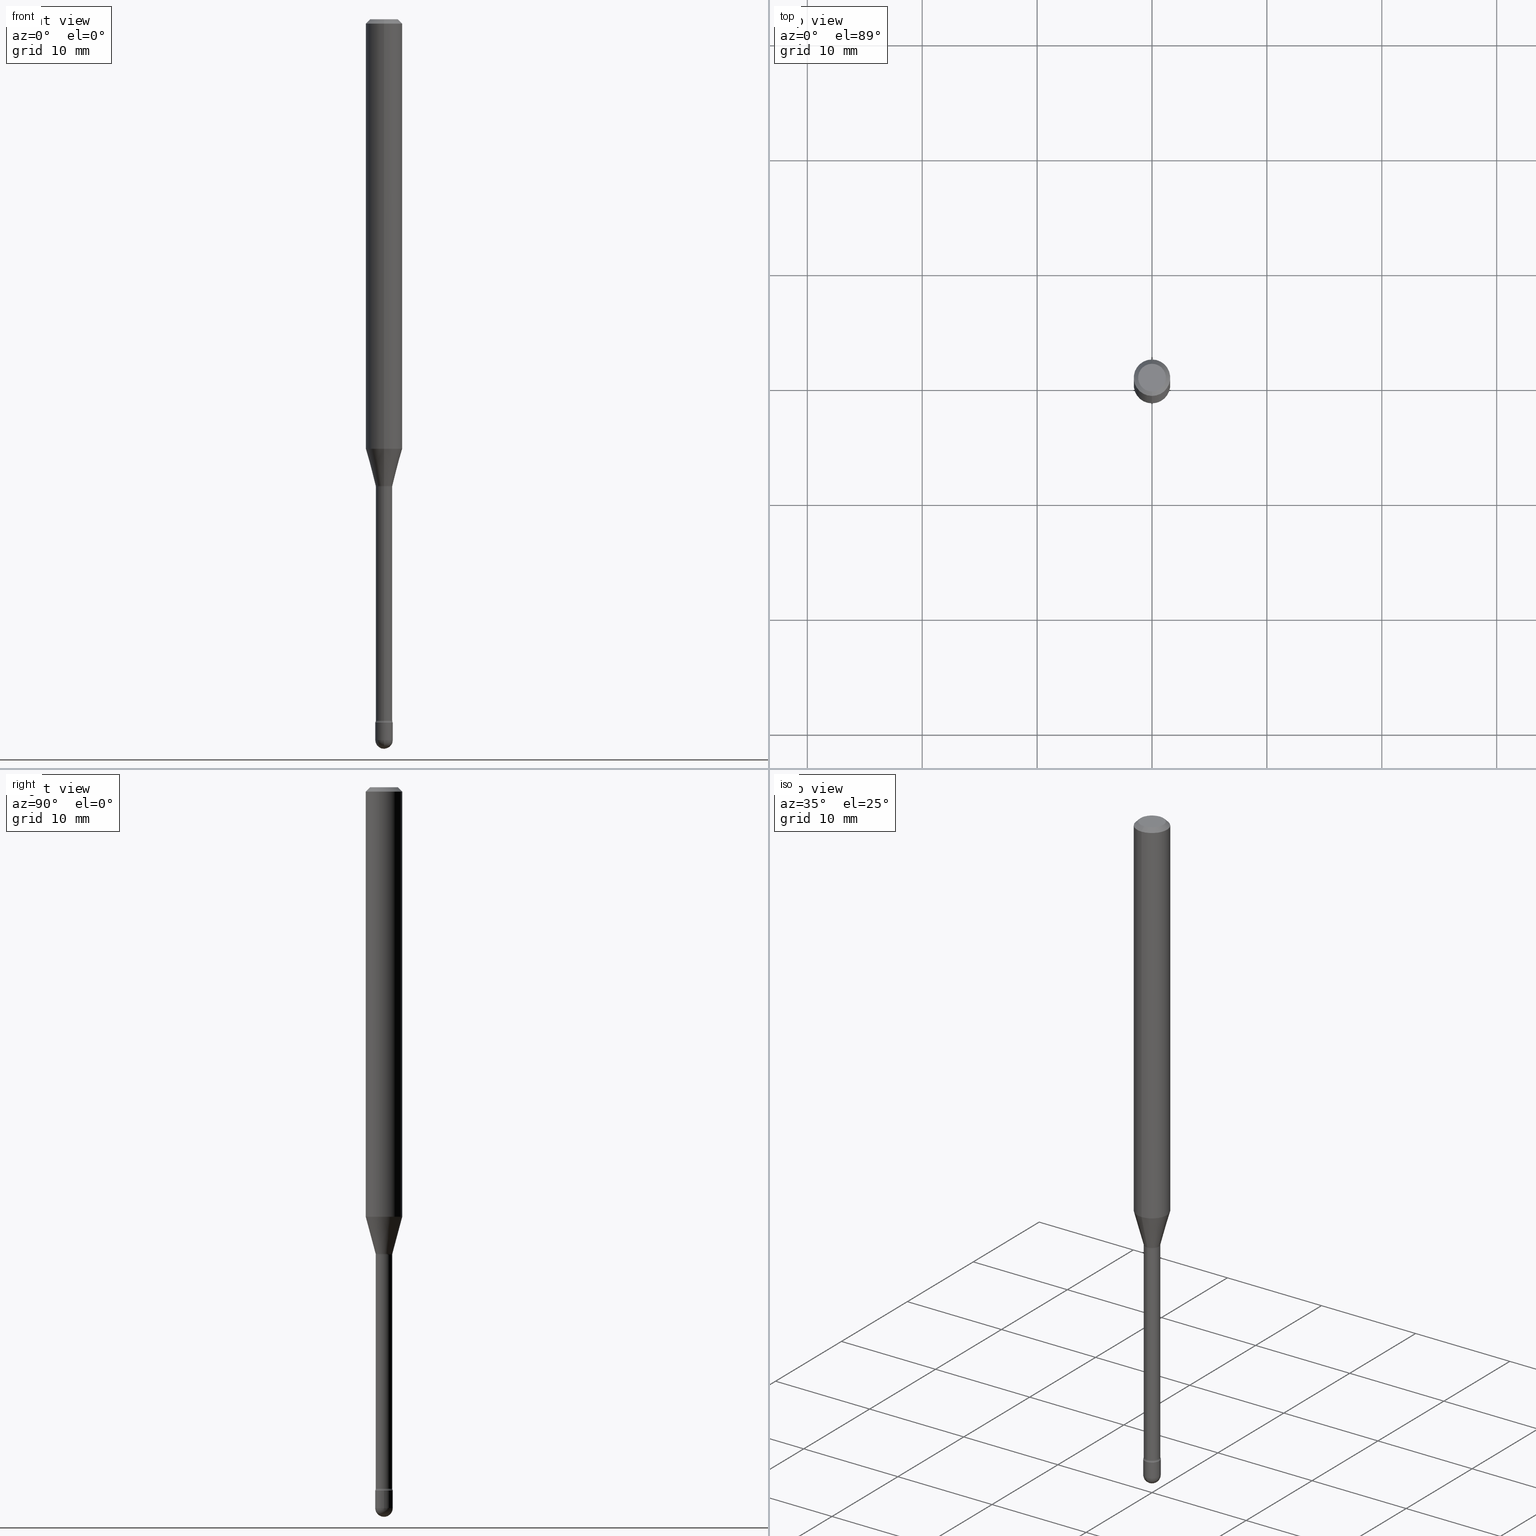
[diagram: canonical four-view strip — front | top / right | iso, engineering-drawing reading convention]
A machine part, canonical four-view strip (front | top / right | iso — engineering-drawing reading convention). The complete STEP part file that produces these views, byte-faithful:
ISO-10303-21;
HEADER;
FILE_DESCRIPTION (( 'STEP AP203' ),
    '1' );
FILE_NAME ('03925.STEP',
    '2024-04-09T21:12:41',
    ( '' ),
    ( '' ),
    'SwSTEP 2.0',
    'SolidWorks 2023',
    '' );
FILE_SCHEMA (( 'CONFIG_CONTROL_DESIGN' ));
ENDSEC;

DATA;
#1 = ORIENTED_EDGE ( 'NONE', *, *, #230, .F. ) ;
#2 = DIRECTION ( 'NONE',  ( -6.982962677686265922E-15, -1.000000000000000000, 3.491424740603152967E-15 ) ) ;
#3 = CALENDAR_DATE ( 2024, 9, 4 ) ;
#4 = AXIS2_PLACEMENT_3D ( 'NONE', #307, #119, #34 ) ;
#5 = APPROVAL_PERSON_ORGANIZATION ( #11, #550, #84 ) ;
#6 = EDGE_LOOP ( 'NONE', ( #57, #165, #459, #301 ) ) ;
#7 = SHAPE_DEFINITION_REPRESENTATION ( #290, #172 ) ;
#8 = DIRECTION ( 'NONE',  ( 0.000000000000000000, 0.000000000000000000, 1.000000000000000000 ) ) ;
#9 = EDGE_LOOP ( 'NONE', ( #103, #410, #372, #249 ) ) ;
#10 = PERSON_AND_ORGANIZATION_ROLE ( 'creator' ) ;
#11 = PERSON_AND_ORGANIZATION ( #502, #255 ) ;
#12 = CIRCLE ( 'NONE', #141, 0.01499999999999997689 ) ;
#13 = CARTESIAN_POINT ( 'NONE',  ( 3.917642684829632666E-29, -5.593174406773630015E-15, -1.601974787463811278 ) ) ;
#14 = CARTESIAN_POINT ( 'NONE',  ( -4.287811248607203282E-16, -0.06250000000000005551, -0.01499999999999986587 ) ) ;
#15 = CYLINDRICAL_SURFACE ( 'NONE', #389, 0.03000000000000000583 ) ;
#16 = ADVANCED_FACE ( 'NONE', ( #152 ), #291, .T. ) ;
#17 = DIRECTION ( 'NONE',  ( -1.000000000000000000, 6.982962677686265922E-15, -4.883557194083112901E-29 ) ) ;
#18 = DIRECTION ( 'NONE',  ( -6.982962677686266711E-15, -1.000000000000000000, 0.000000000000000000 ) ) ;
#19 = VERTEX_POINT ( 'NONE', #330 ) ;
#20 = CIRCLE ( 'NONE', #139, 0.02999999999999999889 ) ;
#21 = AXIS2_PLACEMENT_3D ( 'NONE', #162, #31, #260 ) ;
#22 = CARTESIAN_POINT ( 'NONE',  ( -0.03000000000000000583, 2.131628207280300972E-16, -1.475680527076471882E-30 ) ) ;
#23 = FACE_OUTER_BOUND ( 'NONE', #453, .T. ) ;
#24 = EDGE_LOOP ( 'NONE', ( #350, #529, #219, #214 ) ) ;
#25 = CARTESIAN_POINT ( 'NONE',  ( 3.069544618484023452E-16, 0.04319999999999440260, -1.601974787463811500 ) ) ;
#26 = DIRECTION ( 'NONE',  ( -2.445508328524885386E-29, 3.491424740603154151E-15, 1.000000000000000000 ) ) ;
#27 = VERTEX_POINT ( 'NONE', #286 ) ;
#28 = AXIS2_PLACEMENT_3D ( 'NONE', #196, #365, #537 ) ;
#29 = EDGE_CURVE ( 'NONE', #43, #257, #481, .T. ) ;
#30 = CC_DESIGN_APPROVAL ( #341, ( #446 ) ) ;
#31 = DIRECTION ( 'NONE',  ( -1.000000000000000000, 7.105427357601001070E-15, -4.926315508542082329E-29 ) ) ;
#32 = DIRECTION ( 'NONE',  ( 6.982962677686265922E-15, 1.000000000000000000, -3.491424740603154151E-15 ) ) ;
#33 = ORIENTED_EDGE ( 'NONE', *, *, #360, .T. ) ;
#34 = DIRECTION ( 'NONE',  ( -6.982962677686265922E-15, -1.000000000000000000, 4.370956789862821150E-15 ) ) ;
#35 = CC_DESIGN_PERSON_AND_ORGANIZATION_ASSIGNMENT ( #431, #38, ( #117 ) ) ;
#36 = ORIENTED_EDGE ( 'NONE', *, *, #29, .T. ) ;
#37 = DIRECTION ( 'NONE',  ( 1.000000000000000000, -6.982962677686266711E-15, 4.876176775795935793E-29 ) ) ;
#38 = PERSON_AND_ORGANIZATION_ROLE ( 'classification_officer' ) ;
#39 = AXIS2_PLACEMENT_3D ( 'NONE', #153, #387, #250 ) ;
#40 = ORIENTED_EDGE ( 'NONE', *, *, #230, .T. ) ;
#41 = CARTESIAN_POINT ( 'NONE',  ( 3.668262492787347837E-31, -5.237137110904760365E-17, -0.01500000000000008271 ) ) ;
#42 = EDGE_CURVE ( 'NONE', #68, #471, #197, .T. ) ;
#43 = VERTEX_POINT ( 'NONE', #452 ) ;
#44 = DIRECTION ( 'NONE',  ( -2.445468806185136597E-29, 3.491481338843145583E-15, 1.000000000000000000 ) ) ;
#45 = EDGE_LOOP ( 'NONE', ( #157, #400, #97, #166 ) ) ;
#46 = APPROVAL_STATUS ( 'not_yet_approved' ) ;
#47 = CIRCLE ( 'NONE', #21, 0.02999999999999997807 ) ;
#48 = PERSON_AND_ORGANIZATION ( #502, #255 ) ;
#49 = APPROVAL_STATUS ( 'not_yet_approved' ) ;
#50 = EDGE_CURVE ( 'NONE', #151, #27, #468, .T. ) ;
#51 = EDGE_CURVE ( 'NONE', #555, #548, #511, .T. ) ;
#52 = CIRCLE ( 'NONE', #532, 0.02820000000000000284 ) ;
#53 = EDGE_LOOP ( 'NONE', ( #238, #184 ) ) ;
#54 = DIRECTION ( 'NONE',  ( -2.445508328524885105E-29, 3.491424740603154151E-15, 1.000000000000000000 ) ) ;
#55 = DIRECTION ( 'NONE',  ( -2.445508328524885386E-29, 3.491424740603154151E-15, 1.000000000000000000 ) ) ;
#56 = CARTESIAN_POINT ( 'NONE',  ( -4.364351673553558748E-16, -0.06250000000000517641, -1.471990657300387584 ) ) ;
#57 = ORIENTED_EDGE ( 'NONE', *, *, #287, .F. ) ;
#58 = EDGE_CURVE ( 'NONE', #259, #203, #159, .T. ) ;
#59 = TOROIDAL_SURFACE ( 'NONE', #268, 0.04319999999999998841, 0.01500000000000001506 ) ;
#60 = DIRECTION ( 'NONE',  ( -2.445508328524885105E-29, 3.491424740603154151E-15, 1.000000000000000000 ) ) ;
#61 = EDGE_CURVE ( 'NONE', #565, #270, #375, .T. ) ;
#62 = CARTESIAN_POINT ( 'NONE',  ( 3.668262492787347837E-31, -5.237137110904760365E-17, -0.01500000000000008271 ) ) ;
#63 = CARTESIAN_POINT ( 'NONE',  ( 6.114954764896610855E-29, -8.726866376909143979E-15, -2.500000000000000000 ) ) ;
#64 = CARTESIAN_POINT ( 'NONE',  ( 6.040307951277287977E-29, -8.623958906942569995E-15, -2.470000000000000195 ) ) ;
#65 = EDGE_LOOP ( 'NONE', ( #300, #540, #441, #515 ) ) ;
#66 = CIRCLE ( 'NONE', #187, 0.03000000000000000583 ) ;
#67 = CIRCLE ( 'NONE', #149, 0.01499999999999997689 ) ;
#68 = VERTEX_POINT ( 'NONE', #161 ) ;
#69 = CC_DESIGN_PERSON_AND_ORGANIZATION_ASSIGNMENT ( #490, #280, ( #446 ) ) ;
#70 = DIRECTION ( 'NONE',  ( 1.000000000000000000, -6.982962677686268288E-15, 0.000000000000000000 ) ) ;
#71 = DIRECTION ( 'NONE',  ( 1.000000000000000000, -7.105427357601001070E-15, 4.926314815413547839E-29 ) ) ;
#72 = DIRECTION ( 'NONE',  ( -2.445468806185136597E-29, 3.491481338843145583E-15, 1.000000000000000000 ) ) ;
#73 = DIRECTION ( 'NONE',  ( -2.445468806185136877E-29, 3.491481338843145188E-15, 1.000000000000000000 ) ) ;
#74 = FACE_OUTER_BOUND ( 'NONE', #79, .T. ) ;
#75 = ORIENTED_EDGE ( 'NONE', *, *, #179, .T. ) ;
#76 = EDGE_CURVE ( 'NONE', #451, #151, #335, .T. ) ;
#77 = CARTESIAN_POINT ( 'NONE',  ( 5.876251790263210729E-29, -8.389458601808959728E-15, -2.402875394747777449 ) ) ;
#78 = CC_DESIGN_PERSON_AND_ORGANIZATION_ASSIGNMENT ( #227, #10, ( #446 ) ) ;
#79 = EDGE_LOOP ( 'NONE', ( #261, #234 ) ) ;
#80 = CC_DESIGN_SECURITY_CLASSIFICATION ( #117, ( #446 ) ) ;
#81 = DIRECTION ( 'NONE',  ( 1.000000000000000000, -6.982962677686299054E-15, 0.000000000000000000 ) ) ;
#82 = PERSON_AND_ORGANIZATION_ROLE ( 'design_owner' ) ;
#83 = ORIENTED_EDGE ( 'NONE', *, *, #229, .T. ) ;
#84 = APPROVAL_ROLE ( '' ) ;
#85 = COORDINATED_UNIVERSAL_TIME_OFFSET ( 5, 0, .BEHIND. ) ;
#86 = AXIS2_PLACEMENT_3D ( 'NONE', #516, #394, #345 ) ;
#87 = CIRCLE ( 'NONE', #414, 0.02871111260566398468 ) ;
#88 = APPROVAL_PERSON_ORGANIZATION ( #48, #341, #89 ) ;
#89 = APPROVAL_ROLE ( '' ) ;
#90 = FACE_OUTER_BOUND ( 'NONE', #175, .T. ) ;
#91 = CARTESIAN_POINT ( 'NONE',  ( -2.131628207279695521E-16, -0.03000000000000861353, -2.470000000000000195 ) ) ;
#92 = CARTESIAN_POINT ( 'NONE',  ( 4.364351673553919652E-16, 0.06249999999999995143, -0.01500000000000030129 ) ) ;
#93 = DIRECTION ( 'NONE',  ( -1.807323732225328562E-15, -0.2588190451025179639, 0.9659258262890690894 ) ) ;
#94 = LOCAL_TIME ( 17, 12, 41.00000000000000000, #142 ) ;
#95 = CARTESIAN_POINT ( 'NONE',  ( 3.668262492787347837E-31, -5.237137110904760365E-17, -0.01500000000000008271 ) ) ;
#96 = ORIENTED_EDGE ( 'NONE', *, *, #308, .F. ) ;
#97 = ORIENTED_EDGE ( 'NONE', *, *, #273, .T. ) ;
#98 = CARTESIAN_POINT ( 'NONE',  ( 5.893579822906179826E-29, -8.414470026611981678E-15, -2.410000000000000142 ) ) ;
#99 = DIRECTION ( 'NONE',  ( -6.982962677686265922E-15, -1.000000000000000000, 3.483106191921935554E-15 ) ) ;
#100 = EDGE_CURVE ( 'NONE', #451, #548, #224, .T. ) ;
#101 = CARTESIAN_POINT ( 'NONE',  ( 4.440892098500625669E-16, 0.06250000000000000000, 2.598593526035489042E-16 ) ) ;
#102 = DIRECTION ( 'NONE',  ( -2.445508328524885105E-29, 3.491424740603154151E-15, 1.000000000000000000 ) ) ;
#103 = ORIENTED_EDGE ( 'NONE', *, *, #229, .F. ) ;
#104 = CARTESIAN_POINT ( 'NONE',  ( 6.040307951277287977E-29, -8.623958906942569995E-15, -2.470000000000000195 ) ) ;
#105 = CIRCLE ( 'NONE', #28, 0.02820000000000011386 ) ;
#106 = AXIS2_PLACEMENT_3D ( 'NONE', #104, #460, #519 ) ;
#107 = DIRECTION ( 'NONE',  ( -6.982962677686265922E-15, -1.000000000000000000, 3.491424740603154151E-15 ) ) ;
#108 = EDGE_CURVE ( 'NONE', #19, #451, #294, .T. ) ;
#109 = UNCERTAINTY_MEASURE_WITH_UNIT (LENGTH_MEASURE( 1.000000000000000082E-05 ), #110, 'distance_accuracy_value', 'NONE');
#110 =( CONVERSION_BASED_UNIT ( 'INCH', #120 ) LENGTH_UNIT ( ) NAMED_UNIT ( #547 ) );
#111 = CARTESIAN_POINT ( 'NONE',  ( 3.908148522873946629E-29, -5.579619698512475548E-15, -1.598092501787273134 ) ) ;
#112 = EDGE_CURVE ( 'NONE', #555, #264, #105, .T. ) ;
#113 = CARTESIAN_POINT ( 'NONE',  ( 0.02999999999999999889, -8.623958906942569995E-15, -2.410000000000000142 ) ) ;
#114 = EDGE_LOOP ( 'NONE', ( #465, #274, #386, #395 ) ) ;
#115 = DIRECTION ( 'NONE',  ( 1.839019923739598738E-15, 0.2588190451025247363, 0.9659258262890673130 ) ) ;
#116 = AXIS2_PLACEMENT_3D ( 'NONE', #475, #72, #81 ) ;
#117 = SECURITY_CLASSIFICATION ( '', '', #232 ) ;
#118 = CARTESIAN_POINT ( 'NONE',  ( -1.169113584055446105E-44, 1.669184350826100908E-30, 4.780733988912460139E-16 ) ) ;
#119 = DIRECTION ( 'NONE',  ( -2.445508328524885105E-29, 3.491424740603154151E-15, 1.000000000000000000 ) ) ;
#120 = LENGTH_MEASURE_WITH_UNIT ( LENGTH_MEASURE( 0.02539999999999999897 ), #476 );
#121 = DIRECTION ( 'NONE',  ( -6.982962677686265133E-15, -1.000000000000000000, 0.000000000000000000 ) ) ;
#122 = ORIENTED_EDGE ( 'NONE', *, *, #392, .F. ) ;
#123 = CARTESIAN_POINT ( 'NONE',  ( 6.040307951277287977E-29, -8.623958906942569995E-15, -2.470000000000000195 ) ) ;
#124 = CC_DESIGN_PERSON_AND_ORGANIZATION_ASSIGNMENT ( #277, #180, ( #487 ) ) ;
#125 = FACE_OUTER_BOUND ( 'NONE', #65, .T. ) ;
#126 = ORIENTED_EDGE ( 'NONE', *, *, #50, .T. ) ;
#127 = DIRECTION ( 'NONE',  ( 6.982962677686265922E-15, 1.000000000000000000, 0.000000000000000000 ) ) ;
#128 = AXIS2_PLACEMENT_3D ( 'NONE', #539, #361, #493 ) ;
#129 = CLOSED_SHELL ( 'NONE', ( #461, #258, #434, #267, #16, #412, #521, #326, #374, #526, #215, #398, #440, #296 ) ) ;
#130 = ORIENTED_EDGE ( 'NONE', *, *, #131, .F. ) ;
#131 = EDGE_CURVE ( 'NONE', #471, #68, #436, .T. ) ;
#132 = DIRECTION ( 'NONE',  ( -1.000000000000000000, 6.982962677686265922E-15, -4.883557194083112340E-29 ) ) ;
#133 = APPROVAL_ROLE ( '' ) ;
#134 = DIRECTION ( 'NONE',  ( -6.982962677686265133E-15, -1.000000000000000000, 0.000000000000000000 ) ) ;
#135 = ADVANCED_FACE ( 'NONE', ( #90 ), #15, .T. ) ;
#136 = ORIENTED_EDGE ( 'NONE', *, *, #76, .F. ) ;
#137 = APPROVAL_DATE_TIME ( #533, #341 ) ;
#138 = CARTESIAN_POINT ( 'NONE',  ( 5.876156823005487003E-29, -8.389594600327222537E-15, -2.402875394747777893 ) ) ;
#139 = AXIS2_PLACEMENT_3D ( 'NONE', #430, #559, #70 ) ;
#140 = ORIENTED_EDGE ( 'NONE', *, *, #50, .F. ) ;
#141 = AXIS2_PLACEMENT_3D ( 'NONE', #500, #17, #411 ) ;
#142 = COORDINATED_UNIVERSAL_TIME_OFFSET ( 5, 0, .BEHIND. ) ;
#143 = CARTESIAN_POINT ( 'NONE',  ( 3.917579371037814600E-29, -5.593265075727111603E-15, -1.601974787463811278 ) ) ;
#144 = MANIFOLD_SOLID_BREP ( 'Body-Move/Copy2[2]', #129 ) ;
#145 = MANIFOLD_SOLID_BREP ( 'Body-Move/Copy2[1]', #449 ) ;
#146 = CARTESIAN_POINT ( 'NONE',  ( -2.004886277601601689E-16, -0.02871111260566956355, -1.598092501787273134 ) ) ;
#147 = ORIENTED_EDGE ( 'NONE', *, *, #480, .T. ) ;
#148 = CIRCLE ( 'NONE', #505, 0.03000000000000000583 ) ;
#149 = AXIS2_PLACEMENT_3D ( 'NONE', #467, #560, #248 ) ;
#150 = DIRECTION ( 'NONE',  ( -6.982962677686266711E-15, -1.000000000000000000, 3.491424740603154151E-15 ) ) ;
#151 = VERTEX_POINT ( 'NONE', #56 ) ;
#152 = FACE_OUTER_BOUND ( 'NONE', #485, .T. ) ;
#153 = CARTESIAN_POINT ( 'NONE',  ( 5.893675071744973785E-29, -8.414333624853602146E-15, -2.410000000000000142 ) ) ;
#154 = CARTESIAN_POINT ( 'NONE',  ( 6.040307951277287977E-29, -8.623958906942569995E-15, -2.470000000000000195 ) ) ;
#155 = ADVANCED_FACE ( 'NONE', ( #368 ), #329, .T. ) ;
#156 = EDGE_CURVE ( 'NONE', #333, #316, #66, .T. ) ;
#157 = ORIENTED_EDGE ( 'NONE', *, *, #499, .F. ) ;
#158 = DIRECTION ( 'NONE',  ( -2.445508328524885105E-29, 3.491424740603154151E-15, 1.000000000000000000 ) ) ;
#159 = CIRCLE ( 'NONE', #320, 0.04749999999999999362 ) ;
#160 = AXIS2_PLACEMENT_3D ( 'NONE', #164, #305, #206 ) ;
#161 = CARTESIAN_POINT ( 'NONE',  ( 4.440892098500987066E-16, 0.06249999999999993755, -0.01500000000000030129 ) ) ;
#162 = CARTESIAN_POINT ( 'NONE',  ( 6.040307951277287977E-29, -8.623958906942569995E-15, -2.470000000000000195 ) ) ;
#163 = CC_DESIGN_DATE_AND_TIME_ASSIGNMENT ( #442, #445, ( #487 ) ) ;
#164 = CARTESIAN_POINT ( 'NONE',  ( 3.917642684829632666E-29, -5.593174406773630015E-15, -1.601974787463811278 ) ) ;
#165 = ORIENTED_EDGE ( 'NONE', *, *, #265, .T. ) ;
#166 = ORIENTED_EDGE ( 'NONE', *, *, #42, .F. ) ;
#167 = FACE_OUTER_BOUND ( 'NONE', #53, .T. ) ;
#168 = CARTESIAN_POINT ( 'NONE',  ( -0.03000000000000000583, -8.306051646049246381E-15, -2.470000000000000195 ) ) ;
#169 = AXIS2_PLACEMENT_3D ( 'NONE', #138, #283, #193 ) ;
#170 = EDGE_CURVE ( 'NONE', #270, #337, #20, .T. ) ;
#171 = ORIENTED_EDGE ( 'NONE', *, *, #131, .T. ) ;
#172 = ADVANCED_BREP_SHAPE_REPRESENTATION ( '03925', ( #145, #144, #428 ), #508 ) ;
#173 = LINE ( 'NONE', #176, #483 ) ;
#174 = COORDINATED_UNIVERSAL_TIME_OFFSET ( 5, 0, .BEHIND. ) ;
#175 = EDGE_LOOP ( 'NONE', ( #205, #75, #40, #352, #517 ) ) ;
#176 = CARTESIAN_POINT ( 'NONE',  ( 2.040047249754869106E-16, 0.02871111260565840581, -1.598092501787273134 ) ) ;
#177 = ORIENTED_EDGE ( 'NONE', *, *, #331, .T. ) ;
#178 = CARTESIAN_POINT ( 'NONE',  ( -4.364351673553916201E-16, -0.06250000000000000000, 6.962874451789432223E-16 ) ) ;
#179 = EDGE_CURVE ( 'NONE', #565, #435, #397, .T. ) ;
#180 = PERSON_AND_ORGANIZATION_ROLE ( 'creator' ) ;
#181 = VECTOR ( 'NONE', #186, 39.37007874015748143 ) ;
#182 = LOCAL_TIME ( 17, 12, 41.00000000000000000, #185 ) ;
#183 = EDGE_CURVE ( 'NONE', #316, #565, #148, .T. ) ;
#184 = ORIENTED_EDGE ( 'NONE', *, *, #331, .F. ) ;
#185 = COORDINATED_UNIVERSAL_TIME_OFFSET ( 5, 0, .BEHIND. ) ;
#186 = DIRECTION ( 'NONE',  ( 4.937700262164548042E-15, 0.7071067811865451302, -0.7071067811865499042 ) ) ;
#187 = AXIS2_PLACEMENT_3D ( 'NONE', #416, #563, #220 ) ;
#188 = CIRCLE ( 'NONE', #427, 0.04749999999999999362 ) ;
#189 = CC_DESIGN_PERSON_AND_ORGANIZATION_ASSIGNMENT ( #405, #82, ( #363 ) ) ;
#190 = DIRECTION ( 'NONE',  ( -6.982962677686266711E-15, -1.000000000000000000, 3.491424740603154151E-15 ) ) ;
#191 = DIRECTION ( 'NONE',  ( -6.982962677686265133E-15, -1.000000000000000000, 0.000000000000000000 ) ) ;
#192 = DIRECTION ( 'NONE',  ( -4.851104656540964275E-15, -0.7071067811865500152, -0.7071067811865450192 ) ) ;
#193 = DIRECTION ( 'NONE',  ( -6.982962677686265133E-15, -1.000000000000000000, 3.491424740603154151E-15 ) ) ;
#194 = CARTESIAN_POINT ( 'NONE',  ( -1.969195475107530967E-16, -0.02820000000000005835, 5.765315765762551553E-16 ) ) ;
#195 = DIRECTION ( 'NONE',  ( -2.445508328524885105E-29, 3.491424740603154151E-15, 1.000000000000000000 ) ) ;
#196 = CARTESIAN_POINT ( 'NONE',  ( 5.876251790263210729E-29, -8.389458601808959728E-15, -2.402875394747777449 ) ) ;
#197 = CIRCLE ( 'NONE', #561, 0.06250000000000000000 ) ;
#198 = CIRCLE ( 'NONE', #106, 0.02999999999999997807 ) ;
#199 = LINE ( 'NONE', #101, #377 ) ;
#200 = CARTESIAN_POINT ( 'NONE',  ( -3.016639876760074670E-16, -0.04320000000000558116, -1.601974787463810834 ) ) ;
#201 = APPROVAL ( #322, 'UNSPECIFIED' ) ;
#202 = CARTESIAN_POINT ( 'NONE',  ( -1.169113584055446105E-44, 1.669184350826100908E-30, 4.780733988912460139E-16 ) ) ;
#203 = VERTEX_POINT ( 'NONE', #528 ) ;
#204 = LINE ( 'NONE', #302, #295 ) ;
#205 = ORIENTED_EDGE ( 'NONE', *, *, #61, .F. ) ;
#206 = DIRECTION ( 'NONE',  ( -6.982962677686265133E-15, -1.000000000000000000, 0.000000000000000000 ) ) ;
#207 = DIRECTION ( 'NONE',  ( -2.445508328524885105E-29, 3.491424740603154151E-15, 1.000000000000000000 ) ) ;
#208 = PLANE ( 'NONE',  #210 ) ;
#209 = AXIS2_PLACEMENT_3D ( 'NONE', #462, #507, #107 ) ;
#210 = AXIS2_PLACEMENT_3D ( 'NONE', #564, #556, #32 ) ;
#211 = CARTESIAN_POINT ( 'NONE',  ( 0.03000000000000000583, -2.094888803305880457E-16, 1.462853032738781053E-30 ) ) ;
#212 = FACE_OUTER_BOUND ( 'NONE', #114, .T. ) ;
#213 = LINE ( 'NONE', #211, #494 ) ;
#214 = ORIENTED_EDGE ( 'NONE', *, *, #183, .F. ) ;
#215 = ADVANCED_FACE ( 'NONE', ( #167 ), #482, .F. ) ;
#216 = ORIENTED_EDGE ( 'NONE', *, *, #538, .F. ) ;
#217 = DIRECTION ( 'NONE',  ( -2.445468806185136597E-29, 3.491481338843145583E-15, 1.000000000000000000 ) ) ;
#218 = AXIS2_PLACEMENT_3D ( 'NONE', #312, #525, #2 ) ;
#219 = ORIENTED_EDGE ( 'NONE', *, *, #179, .F. ) ;
#220 = DIRECTION ( 'NONE',  ( 1.000000000000000000, -6.982962677686299054E-15, 0.000000000000000000 ) ) ;
#221 = ORIENTED_EDGE ( 'NONE', *, *, #108, .F. ) ;
#222 = DIRECTION ( 'NONE',  ( 2.445508328524885105E-29, -3.491424740603154151E-15, -1.000000000000000000 ) ) ;
#223 = EDGE_CURVE ( 'NONE', #27, #151, #457, .T. ) ;
#224 = CIRCLE ( 'NONE', #233, 0.01500000000000001159 ) ;
#225 = CIRCLE ( 'NONE', #542, 0.02820000000000011386 ) ;
#226 = COORDINATED_UNIVERSAL_TIME_OFFSET ( 5, 0, .BEHIND. ) ;
#227 = PERSON_AND_ORGANIZATION ( #502, #255 ) ;
#228 = DIRECTION ( 'NONE',  ( -2.438088387897960049E-29, 3.491481338843145188E-15, 1.000000000000000000 ) ) ;
#229 = EDGE_CURVE ( 'NONE', #19, #27, #173, .T. ) ;
#230 = EDGE_CURVE ( 'NONE', #435, #333, #450, .T. ) ;
#231 = DATE_TIME_ROLE ( 'classification_date' ) ;
#232 = SECURITY_CLASSIFICATION_LEVEL ( 'unclassified' ) ;
#233 = AXIS2_PLACEMENT_3D ( 'NONE', #200, #497, #18 ) ;
#234 = ORIENTED_EDGE ( 'NONE', *, *, #284, .T. ) ;
#235 = AXIS2_PLACEMENT_3D ( 'NONE', #509, #158, #298 ) ;
#236 = LINE ( 'NONE', #14, #492 ) ;
#237 = DIRECTION ( 'NONE',  ( -6.982962677686265922E-15, -1.000000000000000000, 3.483106191921935554E-15 ) ) ;
#238 = ORIENTED_EDGE ( 'NONE', *, *, #29, .F. ) ;
#239 = ORIENTED_EDGE ( 'NONE', *, *, #156, .T. ) ;
#240 = ADVANCED_FACE ( 'NONE', ( #23 ), #262, .T. ) ;
#241 = DIRECTION ( 'NONE',  ( -2.445508328524885105E-29, 3.491424740603154151E-15, 1.000000000000000000 ) ) ;
#242 = DIRECTION ( 'NONE',  ( -6.982962677686266711E-15, -1.000000000000000000, 3.491424740603154545E-15 ) ) ;
#243 = AXIS2_PLACEMENT_3D ( 'NONE', #501, #495, #293 ) ;
#244 = CONICAL_SURFACE ( 'NONE', #366, 0.06250000000000000000, 0.7853981633974483900 ) ;
#245 = ADVANCED_FACE ( 'NONE', ( #433 ), #546, .T. ) ;
#246 = DIRECTION ( 'NONE',  ( -6.982962677686266711E-15, -1.000000000000000000, 3.491424740603154545E-15 ) ) ;
#247 = DIRECTION ( 'NONE',  ( -2.445508328524885105E-29, 3.491424740603154151E-15, 1.000000000000000000 ) ) ;
#248 = DIRECTION ( 'NONE',  ( 7.105427357601001859E-15, 1.000000000000000000, 0.000000000000000000 ) ) ;
#249 = ORIENTED_EDGE ( 'NONE', *, *, #223, .F. ) ;
#250 = DIRECTION ( 'NONE',  ( -6.982962677686265922E-15, -1.000000000000000000, 0.000000000000000000 ) ) ;
#251 =( NAMED_UNIT ( * ) SI_UNIT ( $, .STERADIAN. ) SOLID_ANGLE_UNIT ( ) );
#252 = ORIENTED_EDGE ( 'NONE', *, *, #287, .T. ) ;
#253 = DIRECTION ( 'NONE',  ( -6.982962677686265133E-15, -1.000000000000000000, 0.000000000000000000 ) ) ;
#254 = CONICAL_SURFACE ( 'NONE', #327, 0.06250000000000000000, 0.7853981633974483900 ) ;
#255 = ORGANIZATION ( 'UNSPECIFIED', 'UNSPECIFIED', '' ) ;
#256 = CARTESIAN_POINT ( 'NONE',  ( 3.908148522873946629E-29, -5.579619698512475548E-15, -1.598092501787273134 ) ) ;
#257 = VERTEX_POINT ( 'NONE', #390 ) ;
#258 = ADVANCED_FACE ( 'NONE', ( #310 ), #349, .T. ) ;
#259 = VERTEX_POINT ( 'NONE', #478 ) ;
#260 = DIRECTION ( 'NONE',  ( -7.105427357601001070E-15, -1.000000000000000000, 0.000000000000000000 ) ) ;
#261 = ORIENTED_EDGE ( 'NONE', *, *, #58, .T. ) ;
#262 = SPHERICAL_SURFACE ( 'NONE', #470, 0.02999999999999997807 ) ;
#263 =( NAMED_UNIT ( * ) PLANE_ANGLE_UNIT ( ) SI_UNIT ( $, .RADIAN. ) );
#264 = VERTEX_POINT ( 'NONE', #566 ) ;
#265 = EDGE_CURVE ( 'NONE', #264, #555, #225, .T. ) ;
#266 = DIRECTION ( 'NONE',  ( -2.445508328524885105E-29, 3.491424740603154151E-15, 1.000000000000000000 ) ) ;
#267 = ADVANCED_FACE ( 'NONE', ( #437 ), #244, .T. ) ;
#268 = AXIS2_PLACEMENT_3D ( 'NONE', #544, #54, #150 ) ;
#269 = LOCAL_TIME ( 17, 12, 41.00000000000000000, #226 ) ;
#270 = VERTEX_POINT ( 'NONE', #371 ) ;
#271 = LINE ( 'NONE', #178, #444 ) ;
#272 = PERSON_AND_ORGANIZATION ( #502, #255 ) ;
#273 = EDGE_CURVE ( 'NONE', #151, #471, #271, .T. ) ;
#274 = ORIENTED_EDGE ( 'NONE', *, *, #58, .F. ) ;
#275 = DATE_AND_TIME ( #401, #269 ) ;
#276 = DATE_AND_TIME ( #3, #304 ) ;
#277 = PERSON_AND_ORGANIZATION ( #502, #255 ) ;
#278 = AXIS2_PLACEMENT_3D ( 'NONE', #25, #71, #376 ) ;
#279 = APPLICATION_PROTOCOL_DEFINITION ( 'international standard', 'config_control_design', 1994, #282 ) ;
#280 = PERSON_AND_ORGANIZATION_ROLE ( 'design_supplier' ) ;
#281 = VECTOR ( 'NONE', #93, 39.37007874015748854 ) ;
#282 = APPLICATION_CONTEXT ( 'configuration controlled 3d designs of mechanical parts and assemblies' ) ;
#283 = DIRECTION ( 'NONE',  ( -2.445508328524885105E-29, 3.491424740603154151E-15, 1.000000000000000000 ) ) ;
#284 = EDGE_CURVE ( 'NONE', #203, #259, #188, .T. ) ;
#285 = AXIS2_PLACEMENT_3D ( 'NONE', #143, #402, #190 ) ;
#286 = CARTESIAN_POINT ( 'NONE',  ( 4.440892098500983121E-16, 0.06249999999999484440, -1.471990657300388250 ) ) ;
#287 = EDGE_CURVE ( 'NONE', #264, #424, #204, .T. ) ;
#288 = DIRECTION ( 'NONE',  ( -2.445468806185136597E-29, 3.491481338843145583E-15, 1.000000000000000000 ) ) ;
#289 = DIRECTION ( 'NONE',  ( -2.445468806185136597E-29, 3.491481338843145583E-15, 1.000000000000000000 ) ) ;
#290 = PRODUCT_DEFINITION_SHAPE ( 'NONE', 'NONE',  #487 ) ;
#291 = CYLINDRICAL_SURFACE ( 'NONE', #209, 0.06250000000000000000 ) ;
#292 = CARTESIAN_POINT ( 'NONE',  ( 5.893579822906179826E-29, -8.414470026611981678E-15, -2.410000000000000142 ) ) ;
#293 = DIRECTION ( 'NONE',  ( -6.982962677686265922E-15, -1.000000000000000000, 0.000000000000000000 ) ) ;
#294 = CIRCLE ( 'NONE', #128, 0.02871111260566398468 ) ;
#295 = VECTOR ( 'NONE', #358, 39.37007874015748143 ) ;
#296 = ADVANCED_FACE ( 'NONE', ( #125 ), #391, .F. ) ;
#297 = CARTESIAN_POINT ( 'NONE',  ( 3.599765411938919175E-29, -5.139344598835272478E-15, -1.471990657300388028 ) ) ;
#298 = DIRECTION ( 'NONE',  ( -6.982962677686265133E-15, -1.000000000000000000, 3.491424740603154151E-15 ) ) ;
#299 = DIRECTION ( 'NONE',  ( -2.445508328524885105E-29, 3.491424740603154151E-15, 1.000000000000000000 ) ) ;
#300 = ORIENTED_EDGE ( 'NONE', *, *, #381, .F. ) ;
#301 = ORIENTED_EDGE ( 'NONE', *, *, #443, .F. ) ;
#302 = CARTESIAN_POINT ( 'NONE',  ( 2.003730514843486177E-16, 0.02820000000000005835, 3.796152212062369219E-16 ) ) ;
#303 = CIRCLE ( 'NONE', #160, 0.02820000000000000284 ) ;
#304 = LOCAL_TIME ( 17, 12, 41.00000000000000000, #85 ) ;
#305 = DIRECTION ( 'NONE',  ( -2.445508328524885105E-29, 3.491424740603154151E-15, 1.000000000000000000 ) ) ;
#306 = ORIENTED_EDGE ( 'NONE', *, *, #419, .T. ) ;
#307 = CARTESIAN_POINT ( 'NONE',  ( 3.599765411938919175E-29, -5.139344598835272478E-15, -1.471990657300388028 ) ) ;
#308 = EDGE_CURVE ( 'NONE', #259, #68, #323, .T. ) ;
#309 = EDGE_LOOP ( 'NONE', ( #498, #252, #557, #432 ) ) ;
#310 = FACE_OUTER_BOUND ( 'NONE', #309, .T. ) ;
#311 = ORIENTED_EDGE ( 'NONE', *, *, #443, .T. ) ;
#312 = CARTESIAN_POINT ( 'NONE',  ( -1.169113584055446105E-44, 1.669184350826100908E-30, 4.780733988912460139E-16 ) ) ;
#313 = AXIS2_PLACEMENT_3D ( 'NONE', #202, #241, #545 ) ;
#314 = EDGE_CURVE ( 'NONE', #203, #471, #236, .T. ) ;
#315 = LOCAL_TIME ( 17, 12, 41.00000000000000000, #174 ) ;
#316 = VERTEX_POINT ( 'NONE', #486 ) ;
#317 = CARTESIAN_POINT ( 'NONE',  ( 2.023840252156712929E-45, -2.888873632766425758E-31, -8.274972048794492313E-17 ) ) ;
#318 = APPROVAL_DATE_TIME ( #275, #550 ) ;
#319 = CALENDAR_DATE ( 2024, 9, 4 ) ;
#320 = AXIS2_PLACEMENT_3D ( 'NONE', #421, #207, #242 ) ;
#321 = CONICAL_SURFACE ( 'NONE', #506, 0.02871111260566398468, 0.2617993877991500740 ) ;
#322 = APPROVAL_STATUS ( 'not_yet_approved' ) ;
#323 = LINE ( 'NONE', #92, #181 ) ;
#324 = CARTESIAN_POINT ( 'NONE',  ( 0.000000000000000000, 0.000000000000000000, 0.000000000000000000 ) ) ;
#325 = VECTOR ( 'NONE', #552, 39.37007874015748143 ) ;
#326 = ADVANCED_FACE ( 'NONE', ( #463 ), #549, .T. ) ;
#327 = AXIS2_PLACEMENT_3D ( 'NONE', #512, #418, #423 ) ;
#328 = DESIGN_CONTEXT ( 'detailed design', #534, 'design' ) ;
#329 = PLANE ( 'NONE',  #425 ) ;
#330 = CARTESIAN_POINT ( 'NONE',  ( 3.240469674127928209E-16, 0.02871111260565840581, -1.598092501787273134 ) ) ;
#331 = EDGE_CURVE ( 'NONE', #257, #43, #407, .T. ) ;
#332 = DIRECTION ( 'NONE',  ( 1.000000000000000000, -6.982962677686299054E-15, 0.000000000000000000 ) ) ;
#333 = VERTEX_POINT ( 'NONE', #338 ) ;
#334 = AXIS2_PLACEMENT_3D ( 'NONE', #98, #288, #454 ) ;
#335 = LINE ( 'NONE', #491, #281 ) ;
#336 = FACE_OUTER_BOUND ( 'NONE', #9, .T. ) ;
#337 = VERTEX_POINT ( 'NONE', #113 ) ;
#338 = CARTESIAN_POINT ( 'NONE',  ( 0.03000000000000000583, -8.728703347107864943E-15, -2.470000000000000195 ) ) ;
#339 = ORIENTED_EDGE ( 'NONE', *, *, #183, .T. ) ;
#340 = CARTESIAN_POINT ( 'NONE',  ( -1.969195475107135058E-16, -0.02820000000000559212, -1.601974787463811278 ) ) ;
#341 = APPROVAL ( #46, 'UNSPECIFIED' ) ;
#342 = DIRECTION ( 'NONE',  ( -2.445508328524885105E-29, 3.491424740603154151E-15, 1.000000000000000000 ) ) ;
#343 = EDGE_LOOP ( 'NONE', ( #474, #477, #171, #96 ) ) ;
#344 = AXIS2_PLACEMENT_3D ( 'NONE', #123, #44, #523 ) ;
#345 = DIRECTION ( 'NONE',  ( -6.982962677686265922E-15, -1.000000000000000000, 3.491424740603154151E-15 ) ) ;
#346 = TOROIDAL_SURFACE ( 'NONE', #235, 0.04320000000000009249, 0.01499999999999998036 ) ;
#347 = DIRECTION ( 'NONE',  ( -2.445508328524885105E-29, 3.491424740603154151E-15, 1.000000000000000000 ) ) ;
#348 = VERTEX_POINT ( 'NONE', #63 ) ;
#349 = CYLINDRICAL_SURFACE ( 'NONE', #218, 0.02820000000000005835 ) ;
#350 = ORIENTED_EDGE ( 'NONE', *, *, #360, .F. ) ;
#351 = DIRECTION ( 'NONE',  ( 6.982962677686265922E-15, 1.000000000000000000, -3.483106191921935554E-15 ) ) ;
#352 = ORIENTED_EDGE ( 'NONE', *, *, #543, .T. ) ;
#353 = AXIS2_PLACEMENT_3D ( 'NONE', #95, #102, #237 ) ;
#354 = AXIS2_PLACEMENT_3D ( 'NONE', #422, #347, #121 ) ;
#355 = APPROVAL_DATE_TIME ( #276, #201 ) ;
#356 = APPLICATION_PROTOCOL_DEFINITION ( 'international standard', 'config_control_design', 1994, #534 ) ;
#357 = CALENDAR_DATE ( 2024, 9, 4 ) ;
#358 = DIRECTION ( 'NONE',  ( -2.445508328524885386E-29, 3.491424740603154151E-15, 1.000000000000000000 ) ) ;
#359 = AXIS2_PLACEMENT_3D ( 'NONE', #64, #473, #466 ) ;
#360 = EDGE_CURVE ( 'NONE', #348, #316, #198, .T. ) ;
#361 = DIRECTION ( 'NONE',  ( -2.445508328524885105E-29, 3.491424740603154151E-15, 1.000000000000000000 ) ) ;
#362 = FACE_OUTER_BOUND ( 'NONE', #438, .T. ) ;
#363 = PRODUCT ( '03925', '03925', '', ( #484 ) ) ;
#364 = ADVANCED_FACE ( 'NONE', ( #469 ), #514, .T. ) ;
#365 = DIRECTION ( 'NONE',  ( -2.445508328524885105E-29, 3.491424740603154151E-15, 1.000000000000000000 ) ) ;
#366 = AXIS2_PLACEMENT_3D ( 'NONE', #41, #222, #351 ) ;
#367 = CC_DESIGN_APPROVAL ( #201, ( #487 ) ) ;
#368 = FACE_OUTER_BOUND ( 'NONE', #524, .T. ) ;
#369 = CYLINDRICAL_SURFACE ( 'NONE', #313, 0.02820000000000005835 ) ;
#370 = ORIENTED_EDGE ( 'NONE', *, *, #170, .T. ) ;
#371 = CARTESIAN_POINT ( 'NONE',  ( -0.02999999999999999889, -8.306051646049246381E-15, -2.410000000000000142 ) ) ;
#372 = ORIENTED_EDGE ( 'NONE', *, *, #76, .T. ) ;
#373 = FACE_OUTER_BOUND ( 'NONE', #388, .T. ) ;
#374 = ADVANCED_FACE ( 'NONE', ( #212 ), #254, .T. ) ;
#375 = LINE ( 'NONE', #22, #325 ) ;
#376 = DIRECTION ( 'NONE',  ( 7.105427357601001859E-15, 1.000000000000000000, 0.000000000000000000 ) ) ;
#377 = VECTOR ( 'NONE', #26, 39.37007874015748143 ) ;
#378 = ORIENTED_EDGE ( 'NONE', *, *, #381, .T. ) ;
#379 = DIRECTION ( 'NONE',  ( -2.445508328524885105E-29, 3.491424740603154151E-15, 1.000000000000000000 ) ) ;
#380 = ORIENTED_EDGE ( 'NONE', *, *, #61, .T. ) ;
#381 = EDGE_CURVE ( 'NONE', #19, #424, #520, .T. ) ;
#382 = ORIENTED_EDGE ( 'NONE', *, *, #538, .T. ) ;
#383 = ORIENTED_EDGE ( 'NONE', *, *, #265, .F. ) ;
#384 = DIRECTION ( 'NONE',  ( -2.445468806185136597E-29, 3.491481338843145583E-15, 1.000000000000000000 ) ) ;
#385 = EDGE_CURVE ( 'NONE', #548, #424, #303, .T. ) ;
#386 = ORIENTED_EDGE ( 'NONE', *, *, #308, .T. ) ;
#387 = DIRECTION ( 'NONE',  ( -2.445508328524885105E-29, 3.491424740603154151E-15, 1.000000000000000000 ) ) ;
#388 = EDGE_LOOP ( 'NONE', ( #216, #558, #147, #36 ) ) ;
#389 = AXIS2_PLACEMENT_3D ( 'NONE', #324, #289, #455 ) ;
#390 = CARTESIAN_POINT ( 'NONE',  ( 2.131628207280888920E-16, 0.02999999999999157507, -2.410000000000000142 ) ) ;
#391 = TOROIDAL_SURFACE ( 'NONE', #285, 0.04319999999999998841, 0.01500000000000001506 ) ;
#392 = EDGE_CURVE ( 'NONE', #348, #435, #47, .T. ) ;
#393 = EDGE_LOOP ( 'NONE', ( #306, #83, #140, #136 ) ) ;
#394 = DIRECTION ( 'NONE',  ( -2.445508328524884545E-29, 3.491424740603154151E-15, 1.000000000000000000 ) ) ;
#395 = ORIENTED_EDGE ( 'NONE', *, *, #42, .T. ) ;
#396 = CARTESIAN_POINT ( 'NONE',  ( 0.000000000000000000, 0.000000000000000000, 0.000000000000000000 ) ) ;
#397 = CIRCLE ( 'NONE', #344, 0.03000000000000000583 ) ;
#398 = ADVANCED_FACE ( 'NONE', ( #373 ), #346, .F. ) ;
#399 = TOROIDAL_SURFACE ( 'NONE', #169, 0.04320000000000009249, 0.01499999999999998036 ) ;
#400 = ORIENTED_EDGE ( 'NONE', *, *, #223, .T. ) ;
#401 = CALENDAR_DATE ( 2024, 9, 4 ) ;
#402 = DIRECTION ( 'NONE',  ( -2.445508328524885105E-29, 3.491424740603154151E-15, 1.000000000000000000 ) ) ;
#403 = PRODUCT_RELATED_PRODUCT_CATEGORY ( 'detail', '', ( #363 ) ) ;
#404 = DIRECTION ( 'NONE',  ( 1.000000000000000000, -6.982962677686265922E-15, 4.876176775795935793E-29 ) ) ;
#405 = PERSON_AND_ORGANIZATION ( #502, #255 ) ;
#406 = VECTOR ( 'NONE', #55, 39.37007874015748143 ) ;
#407 = CIRCLE ( 'NONE', #39, 0.02999999999999999889 ) ;
#408 = ORIENTED_EDGE ( 'NONE', *, *, #499, .T. ) ;
#409 = CARTESIAN_POINT ( 'NONE',  ( -4.364351673553912750E-16, -0.06250000000000005551, -0.01499999999999986587 ) ) ;
#410 = ORIENTED_EDGE ( 'NONE', *, *, #108, .T. ) ;
#411 = DIRECTION ( 'NONE',  ( -6.982962677686266711E-15, -1.000000000000000000, 0.000000000000000000 ) ) ;
#412 = ADVANCED_FACE ( 'NONE', ( #554 ), #321, .T. ) ;
#413 = FACE_OUTER_BOUND ( 'NONE', #6, .T. ) ;
#414 = AXIS2_PLACEMENT_3D ( 'NONE', #256, #379, #134 ) ;
#415 = DIRECTION ( 'NONE',  ( -2.445508328524885105E-29, 3.491424740603154151E-15, 1.000000000000000000 ) ) ;
#416 = CARTESIAN_POINT ( 'NONE',  ( 6.040307951277287977E-29, -8.623958906942569995E-15, -2.470000000000000195 ) ) ;
#417 = DIRECTION ( 'NONE',  ( -6.982962677686265922E-15, -1.000000000000000000, 4.370956789862821150E-15 ) ) ;
#418 = DIRECTION ( 'NONE',  ( 2.445508328524885105E-29, -3.491424740603154151E-15, -1.000000000000000000 ) ) ;
#419 = EDGE_CURVE ( 'NONE', #451, #19, #87, .T. ) ;
#420 = DATE_AND_TIME ( #504, #315 ) ;
#421 = CARTESIAN_POINT ( 'NONE',  ( 2.023840252156712929E-45, -2.888873632766425758E-31, -8.274972048794492313E-17 ) ) ;
#422 = CARTESIAN_POINT ( 'NONE',  ( 3.908148522873946629E-29, -5.579619698512475548E-15, -1.598092501787273134 ) ) ;
#423 = DIRECTION ( 'NONE',  ( 6.982962677686265922E-15, 1.000000000000000000, -3.483106191921935554E-15 ) ) ;
#424 = VERTEX_POINT ( 'NONE', #447 ) ;
#425 = AXIS2_PLACEMENT_3D ( 'NONE', #292, #228, #404 ) ;
#426 = DIRECTION ( 'NONE',  ( -6.982962677686265922E-15, -1.000000000000000000, 3.491424740603154151E-15 ) ) ;
#427 = AXIS2_PLACEMENT_3D ( 'NONE', #317, #60, #246 ) ;
#428 = AXIS2_PLACEMENT_3D ( 'NONE', #488, #8, #448 ) ;
#429 = ORIENTED_EDGE ( 'NONE', *, *, #480, .F. ) ;
#430 = CARTESIAN_POINT ( 'NONE',  ( 5.893579822906179826E-29, -8.414470026611981678E-15, -2.410000000000000142 ) ) ;
#431 = PERSON_AND_ORGANIZATION ( #502, #255 ) ;
#432 = ORIENTED_EDGE ( 'NONE', *, *, #51, .F. ) ;
#433 = FACE_OUTER_BOUND ( 'NONE', #496, .T. ) ;
#434 = ADVANCED_FACE ( 'NONE', ( #362 ), #399, .F. ) ;
#435 = VERTEX_POINT ( 'NONE', #91 ) ;
#436 = CIRCLE ( 'NONE', #353, 0.06250000000000000000 ) ;
#437 = FACE_OUTER_BOUND ( 'NONE', #343, .T. ) ;
#438 = EDGE_LOOP ( 'NONE', ( #383, #382, #177, #429 ) ) ;
#439 = DIRECTION ( 'NONE',  ( -6.982962677686265922E-15, -1.000000000000000000, 0.000000000000000000 ) ) ;
#440 = ADVANCED_FACE ( 'NONE', ( #413 ), #369, .T. ) ;
#441 = ORIENTED_EDGE ( 'NONE', *, *, #100, .T. ) ;
#442 = DATE_AND_TIME ( #319, #94 ) ;
#443 = EDGE_CURVE ( 'NONE', #424, #548, #52, .T. ) ;
#444 = VECTOR ( 'NONE', #531, 39.37007874015748143 ) ;
#445 = DATE_TIME_ROLE ( 'creation_date' ) ;
#446 = PRODUCT_DEFINITION_FORMATION_WITH_SPECIFIED_SOURCE ( 'ANY', '', #363, .NOT_KNOWN. ) ;
#447 = CARTESIAN_POINT ( 'NONE',  ( 2.003730514844073386E-16, 0.02819999999999441009, -1.601974787463811278 ) ) ;
#448 = DIRECTION ( 'NONE',  ( 1.000000000000000000, 0.000000000000000000, 0.000000000000000000 ) ) ;
#449 = CLOSED_SHELL ( 'NONE', ( #245, #364, #155, #240, #135 ) ) ;
#450 = CIRCLE ( 'NONE', #116, 0.03000000000000000583 ) ;
#451 = VERTEX_POINT ( 'NONE', #146 ) ;
#452 = CARTESIAN_POINT ( 'NONE',  ( -2.094888803305289551E-16, -0.03000000000000840536, -2.410000000000000142 ) ) ;
#453 = EDGE_LOOP ( 'NONE', ( #122, #33, #527, #1 ) ) ;
#454 = DIRECTION ( 'NONE',  ( 1.000000000000000000, -6.982962677686268288E-15, 0.000000000000000000 ) ) ;
#455 = DIRECTION ( 'NONE',  ( 1.000000000000000000, -6.982962677686266711E-15, 4.876176775795935793E-29 ) ) ;
#456 = ORIENTED_EDGE ( 'NONE', *, *, #543, .F. ) ;
#457 = CIRCLE ( 'NONE', #4, 0.06250000000000000000 ) ;
#458 = CIRCLE ( 'NONE', #334, 0.02999999999999999889 ) ;
#459 = ORIENTED_EDGE ( 'NONE', *, *, #51, .T. ) ;
#460 = DIRECTION ( 'NONE',  ( 1.000000000000000000, -6.982962677686265922E-15, 4.883557194083112340E-29 ) ) ;
#461 = ADVANCED_FACE ( 'NONE', ( #541 ), #59, .F. ) ;
#462 = CARTESIAN_POINT ( 'NONE',  ( -1.169113584055446105E-44, 1.669184350826100908E-30, 4.780733988912460139E-16 ) ) ;
#463 = FACE_OUTER_BOUND ( 'NONE', #45, .T. ) ;
#464 = CARTESIAN_POINT ( 'NONE',  ( -1.969195475106947457E-16, -0.02820000000000849952, -2.402875394747777449 ) ) ;
#465 = ORIENTED_EDGE ( 'NONE', *, *, #314, .F. ) ;
#466 = DIRECTION ( 'NONE',  ( 6.982962677686265922E-15, 1.000000000000000000, 0.000000000000000000 ) ) ;
#467 = CARTESIAN_POINT ( 'NONE',  ( 3.069544618484226583E-16, 0.04319999999999170337, -2.402875394747777893 ) ) ;
#468 = CIRCLE ( 'NONE', #518, 0.06250000000000000000 ) ;
#469 = FACE_OUTER_BOUND ( 'NONE', #24, .T. ) ;
#470 = AXIS2_PLACEMENT_3D ( 'NONE', #154, #132, #127 ) ;
#471 = VERTEX_POINT ( 'NONE', #409 ) ;
#472 = CARTESIAN_POINT ( 'NONE',  ( 6.040307951277287977E-29, -8.623958906942569995E-15, -2.470000000000000195 ) ) ;
#473 = DIRECTION ( 'NONE',  ( -1.000000000000000000, 6.982962677686265922E-15, -4.883557194083112340E-29 ) ) ;
#474 = ORIENTED_EDGE ( 'NONE', *, *, #284, .F. ) ;
#475 = CARTESIAN_POINT ( 'NONE',  ( 6.040307951277287977E-29, -8.623958906942569995E-15, -2.470000000000000195 ) ) ;
#476 =( LENGTH_UNIT ( ) NAMED_UNIT ( * ) SI_UNIT ( $, .METRE. ) );
#477 = ORIENTED_EDGE ( 'NONE', *, *, #314, .T. ) ;
#478 = CARTESIAN_POINT ( 'NONE',  ( 3.840629472727447874E-16, 0.04749999999999999362, -2.485923956665947374E-16 ) ) ;
#479 = ORIENTED_EDGE ( 'NONE', *, *, #273, .F. ) ;
#480 = EDGE_CURVE ( 'NONE', #555, #43, #12, .T. ) ;
#481 = CIRCLE ( 'NONE', #243, 0.02999999999999999889 ) ;
#482 = PLANE ( 'NONE',  #86 ) ;
#483 = VECTOR ( 'NONE', #115, 39.37007874015748854 ) ;
#484 = MECHANICAL_CONTEXT ( 'NONE', #282, 'mechanical' ) ;
#485 = EDGE_LOOP ( 'NONE', ( #126, #408, #130, #479 ) ) ;
#486 = CARTESIAN_POINT ( 'NONE',  ( 2.094888803306483442E-16, 0.02999999999999137038, -2.470000000000000195 ) ) ;
#487 = PRODUCT_DEFINITION ( 'UNKNOWN', '', #446, #328 ) ;
#488 = CARTESIAN_POINT ( 'NONE',  ( 0.000000000000000000, 0.000000000000000000, 0.000000000000000000 ) ) ;
#489 = EDGE_CURVE ( 'NONE', #337, #270, #458, .T. ) ;
#490 = PERSON_AND_ORGANIZATION ( #502, #255 ) ;
#491 = CARTESIAN_POINT ( 'NONE',  ( -2.004886277601601689E-16, -0.02871111260566956355, -1.598092501787273134 ) ) ;
#492 = VECTOR ( 'NONE', #192, 39.37007874015748143 ) ;
#493 = DIRECTION ( 'NONE',  ( -6.982962677686265133E-15, -1.000000000000000000, 0.000000000000000000 ) ) ;
#494 = VECTOR ( 'NONE', #73, 39.37007874015748143 ) ;
#495 = DIRECTION ( 'NONE',  ( -2.445508328524885105E-29, 3.491424740603154151E-15, 1.000000000000000000 ) ) ;
#496 = EDGE_LOOP ( 'NONE', ( #339, #380, #503, #456, #239 ) ) ;
#497 = DIRECTION ( 'NONE',  ( -1.000000000000000000, 6.982962677686265922E-15, -4.883557194083112901E-29 ) ) ;
#498 = ORIENTED_EDGE ( 'NONE', *, *, #112, .T. ) ;
#499 = EDGE_CURVE ( 'NONE', #27, #68, #199, .T. ) ;
#500 = CARTESIAN_POINT ( 'NONE',  ( -3.016639876759885836E-16, -0.04320000000000848855, -2.402875394747777449 ) ) ;
#501 = CARTESIAN_POINT ( 'NONE',  ( 5.893675071744973785E-29, -8.414333624853602146E-15, -2.410000000000000142 ) ) ;
#502 = PERSON ( 'UNSPECIFIED', 'UNSPECIFIED', 'UNSPECIFIED', ('UNSPECIFIED'), ('UNSPECIFIED'), ('UNSPECIFIED') ) ;
#503 = ORIENTED_EDGE ( 'NONE', *, *, #489, .F. ) ;
#504 = CALENDAR_DATE ( 2024, 9, 4 ) ;
#505 = AXIS2_PLACEMENT_3D ( 'NONE', #472, #217, #332 ) ;
#506 = AXIS2_PLACEMENT_3D ( 'NONE', #111, #299, #253 ) ;
#507 = DIRECTION ( 'NONE',  ( -2.445508328524885105E-29, 3.491424740603154151E-15, 1.000000000000000000 ) ) ;
#508 =( GEOMETRIC_REPRESENTATION_CONTEXT ( 3 ) GLOBAL_UNCERTAINTY_ASSIGNED_CONTEXT ( ( #109 ) ) GLOBAL_UNIT_ASSIGNED_CONTEXT ( ( #110, #263, #251 ) ) REPRESENTATION_CONTEXT ( 'NONE', 'WORKASPACE' ) );
#509 = CARTESIAN_POINT ( 'NONE',  ( 5.876156823005487003E-29, -8.389594600327222537E-15, -2.402875394747777893 ) ) ;
#510 = CC_DESIGN_DATE_AND_TIME_ASSIGNMENT ( #420, #231, ( #117 ) ) ;
#511 = LINE ( 'NONE', #194, #406 ) ;
#512 = CARTESIAN_POINT ( 'NONE',  ( 3.668262492787347837E-31, -5.237137110904760365E-17, -0.01500000000000008271 ) ) ;
#513 = EDGE_LOOP ( 'NONE', ( #221, #378, #311, #562 ) ) ;
#514 = SPHERICAL_SURFACE ( 'NONE', #359, 0.02999999999999997807 ) ;
#515 = ORIENTED_EDGE ( 'NONE', *, *, #385, .T. ) ;
#516 = CARTESIAN_POINT ( 'NONE',  ( 2.094888803306469144E-16, 0.02999999999999158548, -2.410000000000000142 ) ) ;
#517 = ORIENTED_EDGE ( 'NONE', *, *, #170, .F. ) ;
#518 = AXIS2_PLACEMENT_3D ( 'NONE', #297, #415, #417 ) ;
#519 = DIRECTION ( 'NONE',  ( 6.982962677686265922E-15, 1.000000000000000000, 0.000000000000000000 ) ) ;
#520 = CIRCLE ( 'NONE', #278, 0.01500000000000001159 ) ;
#521 = ADVANCED_FACE ( 'NONE', ( #336 ), #530, .T. ) ;
#522 = ORIENTED_EDGE ( 'NONE', *, *, #489, .T. ) ;
#523 = DIRECTION ( 'NONE',  ( 1.000000000000000000, -6.982962677686299054E-15, 0.000000000000000000 ) ) ;
#524 = EDGE_LOOP ( 'NONE', ( #522, #370 ) ) ;
#525 = DIRECTION ( 'NONE',  ( -2.445508328524885105E-29, 3.491424740603154151E-15, 1.000000000000000000 ) ) ;
#526 = ADVANCED_FACE ( 'NONE', ( #74 ), #208, .F. ) ;
#527 = ORIENTED_EDGE ( 'NONE', *, *, #156, .F. ) ;
#528 = CARTESIAN_POINT ( 'NONE',  ( -3.773273898774340269E-16, -0.04749999999999999362, 8.309295469070489114E-17 ) ) ;
#529 = ORIENTED_EDGE ( 'NONE', *, *, #392, .T. ) ;
#530 = CONICAL_SURFACE ( 'NONE', #354, 0.02871111260566398468, 0.2617993877991500740 ) ;
#531 = DIRECTION ( 'NONE',  ( -2.445508328524885386E-29, 3.491424740603154151E-15, 1.000000000000000000 ) ) ;
#532 = AXIS2_PLACEMENT_3D ( 'NONE', #13, #195, #191 ) ;
#533 = DATE_AND_TIME ( #357, #182 ) ;
#534 = APPLICATION_CONTEXT ( 'configuration controlled 3d designs of mechanical parts and assemblies' ) ;
#535 = AXIS2_PLACEMENT_3D ( 'NONE', #118, #342, #426 ) ;
#536 = APPROVAL_PERSON_ORGANIZATION ( #272, #201, #133 ) ;
#537 = DIRECTION ( 'NONE',  ( -6.982962677686265922E-15, -1.000000000000000000, 0.000000000000000000 ) ) ;
#538 = EDGE_CURVE ( 'NONE', #264, #257, #67, .T. ) ;
#539 = CARTESIAN_POINT ( 'NONE',  ( 3.908148522873946629E-29, -5.579619698512475548E-15, -1.598092501787273134 ) ) ;
#540 = ORIENTED_EDGE ( 'NONE', *, *, #419, .F. ) ;
#541 = FACE_OUTER_BOUND ( 'NONE', #513, .T. ) ;
#542 = AXIS2_PLACEMENT_3D ( 'NONE', #77, #266, #439 ) ;
#543 = EDGE_CURVE ( 'NONE', #333, #337, #213, .T. ) ;
#544 = CARTESIAN_POINT ( 'NONE',  ( 3.917579371037814600E-29, -5.593265075727111603E-15, -1.601974787463811278 ) ) ;
#545 = DIRECTION ( 'NONE',  ( -6.982962677686265922E-15, -1.000000000000000000, 3.491424740603152967E-15 ) ) ;
#546 = CYLINDRICAL_SURFACE ( 'NONE', #551, 0.03000000000000000583 ) ;
#547 = DIMENSIONAL_EXPONENTS ( 1.000000000000000000, 0.000000000000000000, 0.000000000000000000, 0.000000000000000000, 0.000000000000000000, 0.000000000000000000, 0.000000000000000000 ) ;
#548 = VERTEX_POINT ( 'NONE', #340 ) ;
#549 = CYLINDRICAL_SURFACE ( 'NONE', #535, 0.06250000000000000000 ) ;
#550 = APPROVAL ( #49, 'UNSPECIFIED' ) ;
#551 = AXIS2_PLACEMENT_3D ( 'NONE', #396, #384, #37 ) ;
#552 = DIRECTION ( 'NONE',  ( -2.445468806185136877E-29, 3.491481338843145188E-15, 1.000000000000000000 ) ) ;
#553 = CC_DESIGN_APPROVAL ( #550, ( #117 ) ) ;
#554 = FACE_OUTER_BOUND ( 'NONE', #393, .T. ) ;
#555 = VERTEX_POINT ( 'NONE', #464 ) ;
#556 = DIRECTION ( 'NONE',  ( 2.445508328524884545E-29, -3.491424740603154151E-15, -1.000000000000000000 ) ) ;
#557 = ORIENTED_EDGE ( 'NONE', *, *, #385, .F. ) ;
#558 = ORIENTED_EDGE ( 'NONE', *, *, #112, .F. ) ;
#559 = DIRECTION ( 'NONE',  ( -2.445468806185136597E-29, 3.491481338843145583E-15, 1.000000000000000000 ) ) ;
#560 = DIRECTION ( 'NONE',  ( 1.000000000000000000, -7.105427357601001070E-15, 4.926314815413547839E-29 ) ) ;
#561 = AXIS2_PLACEMENT_3D ( 'NONE', #62, #247, #99 ) ;
#562 = ORIENTED_EDGE ( 'NONE', *, *, #100, .F. ) ;
#563 = DIRECTION ( 'NONE',  ( -2.445468806185136597E-29, 3.491481338843145583E-15, 1.000000000000000000 ) ) ;
#564 = CARTESIAN_POINT ( 'NONE',  ( 3.316907271900976096E-16, 0.04749999999999999362, 3.181916402300071880E-17 ) ) ;
#565 = VERTEX_POINT ( 'NONE', #168 ) ;
#566 = CARTESIAN_POINT ( 'NONE',  ( 2.067679361062483002E-16, 0.02819999999999172474, -2.402875394747777449 ) ) ;
ENDSEC;
END-ISO-10303-21;
